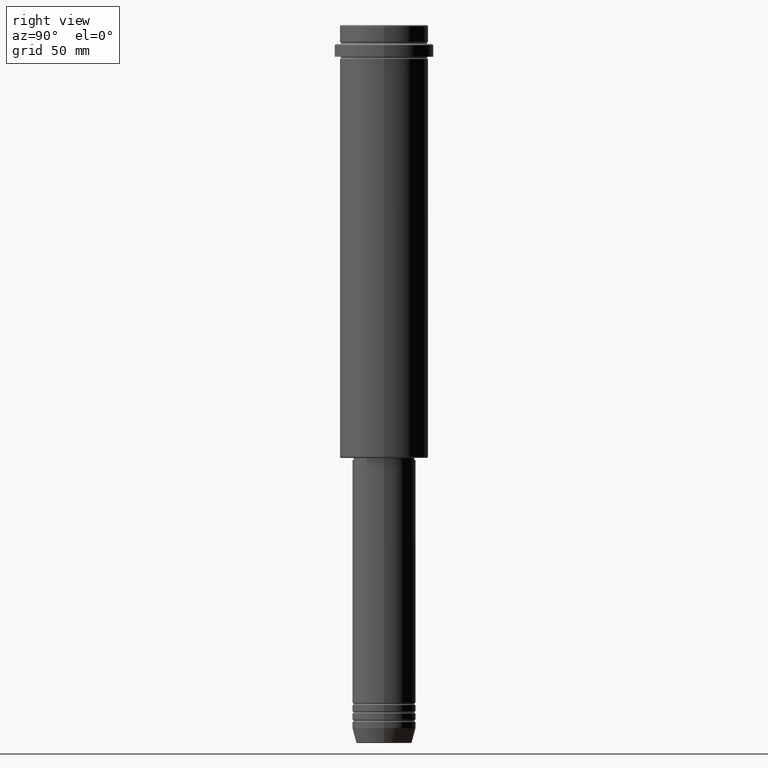
[diagram: clean part render]
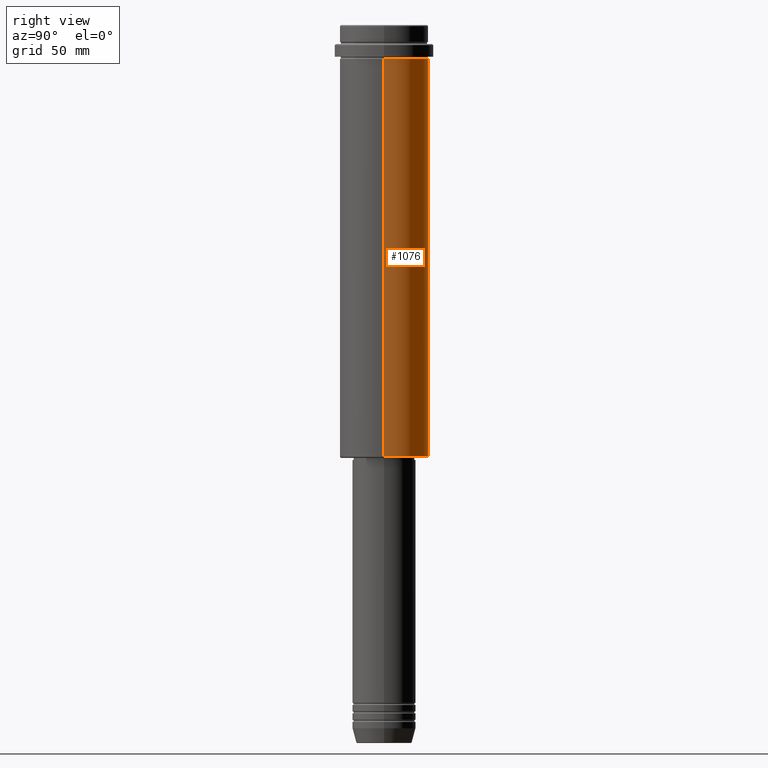
[diagram: same view with one face highlighted and labeled with its STEP entity id]
A machine part, right view. The second image highlights one B-rep face of the part: STEP entity #1076.
In plain terms, the highlighted cylindrical surface (partial cylindrical patch) has radius 21 mm, axis along (-0, -0, 1).
Its self-contained STEP definition (entity closure, byte-faithful):
#11 = VERTEX_POINT ( 'NONE', #242 ) ;
#18 = DIRECTION ( 'NONE',  ( -0.000000000000000000, -0.000000000000000000, 1.000000000000000000 ) ) ;
#46 = EDGE_CURVE ( 'NONE', #1297, #1215, #409, .T. ) ;
#83 = AXIS2_PLACEMENT_3D ( 'NONE', #1051, #165, #1171 ) ;
#87 = VECTOR ( 'NONE', #18, 1000.000000000000000 ) ;
#118 = LINE ( 'NONE', #198, #1004 ) ;
#165 = DIRECTION ( 'NONE',  ( -0.000000000000000000, -0.000000000000000000, 1.000000000000000000 ) ) ;
#198 = CARTESIAN_POINT ( 'NONE',  ( 20.99999999999999645, 0.000000000000000000, 0.000000000000000000 ) ) ;
#207 = EDGE_CURVE ( 'NONE', #11, #1297, #118, .T. ) ;
#230 = VERTEX_POINT ( 'NONE', #974 ) ;
#242 = CARTESIAN_POINT ( 'NONE',  ( 20.99999999999999645, 0.000000000000000000, -204.5000000000000568 ) ) ;
#258 = DIRECTION ( 'NONE',  ( 1.000000000000000000, 0.000000000000000000, 0.000000000000000000 ) ) ;
#260 = CARTESIAN_POINT ( 'NONE',  ( 0.000000000000000000, 0.000000000000000000, 0.000000000000000000 ) ) ;
#280 = CIRCLE ( 'NONE', #83, 20.99999999999999645 ) ;
#351 = AXIS2_PLACEMENT_3D ( 'NONE', #260, #599, #615 ) ;
#362 = ORIENTED_EDGE ( 'NONE', *, *, #207, .F. ) ;
#409 = CIRCLE ( 'NONE', #609, 20.99999999999999645 ) ;
#431 = EDGE_LOOP ( 'NONE', ( #553, #803, #855, #362 ) ) ;
#459 = EDGE_CURVE ( 'NONE', #11, #230, #280, .T. ) ;
#476 = DIRECTION ( 'NONE',  ( -0.000000000000000000, -0.000000000000000000, 1.000000000000000000 ) ) ;
#534 = LINE ( 'NONE', #547, #87 ) ;
#547 = CARTESIAN_POINT ( 'NONE',  ( -20.99999999999999645, 2.571758278209441267E-15, 0.000000000000000000 ) ) ;
#553 = ORIENTED_EDGE ( 'NONE', *, *, #459, .T. ) ;
#556 = DIRECTION ( 'NONE',  ( -0.000000000000000000, -0.000000000000000000, 1.000000000000000000 ) ) ;
#599 = DIRECTION ( 'NONE',  ( -0.000000000000000000, -0.000000000000000000, 1.000000000000000000 ) ) ;
#609 = AXIS2_PLACEMENT_3D ( 'NONE', #1129, #476, #258 ) ;
#615 = DIRECTION ( 'NONE',  ( 1.000000000000000000, 0.000000000000000000, 0.000000000000000000 ) ) ;
#803 = ORIENTED_EDGE ( 'NONE', *, *, #1107, .T. ) ;
#855 = ORIENTED_EDGE ( 'NONE', *, *, #46, .F. ) ;
#906 = CARTESIAN_POINT ( 'NONE',  ( -20.99999999999999645, 2.571758278209441267E-15, -16.00000000000000355 ) ) ;
#974 = CARTESIAN_POINT ( 'NONE',  ( -20.99999999999999645, 2.571758278209441267E-15, -204.5000000000000568 ) ) ;
#1004 = VECTOR ( 'NONE', #556, 1000.000000000000000 ) ;
#1051 = CARTESIAN_POINT ( 'NONE',  ( 0.000000000000000000, 0.000000000000000000, -204.5000000000000568 ) ) ;
#1076 = ADVANCED_FACE ( 'NONE', ( #1154 ), #1366, .T. ) ;
#1107 = EDGE_CURVE ( 'NONE', #230, #1215, #534, .T. ) ;
#1129 = CARTESIAN_POINT ( 'NONE',  ( 0.000000000000000000, 0.000000000000000000, -16.00000000000000355 ) ) ;
#1154 = FACE_OUTER_BOUND ( 'NONE', #431, .T. ) ;
#1171 = DIRECTION ( 'NONE',  ( -1.000000000000000000, 0.000000000000000000, 0.000000000000000000 ) ) ;
#1215 = VERTEX_POINT ( 'NONE', #906 ) ;
#1297 = VERTEX_POINT ( 'NONE', #1314 ) ;
#1314 = CARTESIAN_POINT ( 'NONE',  ( 20.99999999999999645, 0.000000000000000000, -16.00000000000000355 ) ) ;
#1366 = CYLINDRICAL_SURFACE ( 'NONE', #351, 20.99999999999999645 ) ;